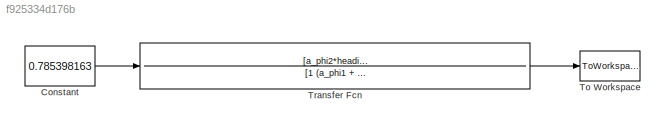
MODEL slx_f925334d176b
KIND model
CONFIG AbsTol = auto
CONFIG FixedStep = auto
CONFIG MaxStep = auto
CONFIG MinStep = auto
CONFIG RelTol = 1e-3
CONFIG SampleTimeConstraint = Unconstrained
CONFIG Solver = VariableStepAuto
CONFIG SolverMode = Auto
CONFIG SolverName = VariableStepAuto
CONFIG StartTime = 0.0
CONFIG StopTime = 20.0
BLOCK [Constant] Constant
  Value = 0.785398163
BLOCK [ToWorkspace] To Workspace
  FixptAsFi = on
  MaxDataPoints = inf
  Ports = [1]
  SampleTime = -1
  Save2DSignal = 3-D array (concatenate along third dimension)
  SaveFormat = Timeseries
  VariableName = course
BLOCK [TransferFcn] Transfer Fcn
  Denominator = [1 (a_phi1 + a_phi2*heading_rudder_kd) a_phi2*heading_rudder_kp]
  Numerator = [a_phi2*heading_rudder_kp]
LINE Constant:1 -> Transfer Fcn:1
LINE Transfer Fcn:1 -> To Workspace:1
